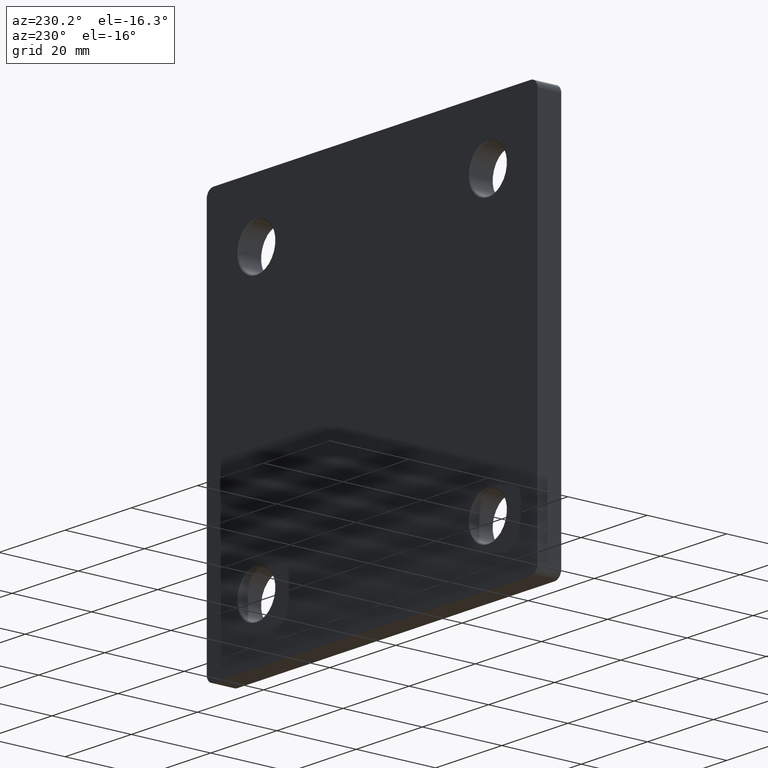
[diagram: clean part render]
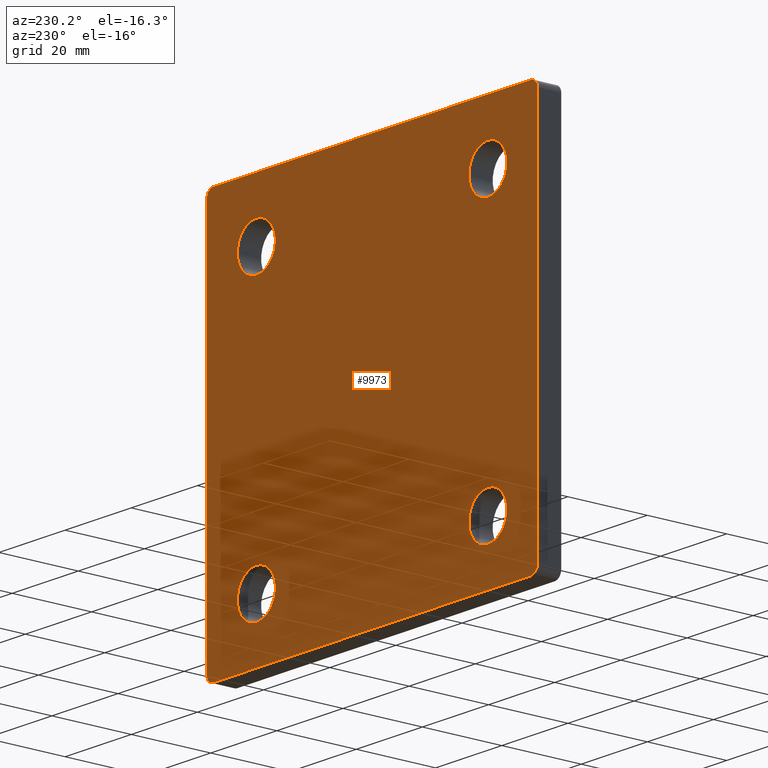
[diagram: same view with one face highlighted and labeled with its STEP entity id]
A machine part, auxiliary view. The second image highlights one B-rep face of the part: STEP entity #9973.
In plain terms, the highlighted planar face has unit normal (0, 1, 0).
Its self-contained STEP definition (entity closure, byte-faithful):
#49 = CARTESIAN_POINT ( 'NONE',  ( -35.00000000000000000, 6.000000000000000000, -40.74999999999999289 ) ) ;
#66 = DIRECTION ( 'NONE',  ( 0.000000000000000000, 0.000000000000000000, 1.000000000000000000 ) ) ;
#80 = EDGE_CURVE ( 'NONE', #7110, #6244, #876, .T. ) ;
#161 = VERTEX_POINT ( 'NONE', #1107 ) ;
#231 = ORIENTED_EDGE ( 'NONE', *, *, #5548, .T. ) ;
#233 = CARTESIAN_POINT ( 'NONE',  ( 47.99999999999998579, 6.000000000000000000, -47.99999999999999289 ) ) ;
#246 = VERTEX_POINT ( 'NONE', #2281 ) ;
#321 = DIRECTION ( 'NONE',  ( 0.000000000000000000, 0.000000000000000000, 1.000000000000000000 ) ) ;
#336 = CARTESIAN_POINT ( 'NONE',  ( 35.00000000000000000, 6.000000000000000000, 35.00000000000000000 ) ) ;
#541 = CIRCLE ( 'NONE', #5663, 5.749999999999991118 ) ;
#711 = CARTESIAN_POINT ( 'NONE',  ( -50.00000000000000000, 6.000000000000000000, -47.99999999999998579 ) ) ;
#864 = DIRECTION ( 'NONE',  ( -0.000000000000000000, -1.000000000000000000, -0.000000000000000000 ) ) ;
#876 = CIRCLE ( 'NONE', #9918, 5.749999999999991118 ) ;
#1096 = AXIS2_PLACEMENT_3D ( 'NONE', #6706, #7399, #8295 ) ;
#1107 = CARTESIAN_POINT ( 'NONE',  ( -35.00000000000000000, 6.000000000000000000, -29.25000000000001066 ) ) ;
#1111 = AXIS2_PLACEMENT_3D ( 'NONE', #1390, #6675, #8497 ) ;
#1130 = CARTESIAN_POINT ( 'NONE',  ( -49.99999999999998579, 6.000000000000000000, 48.00000000000001421 ) ) ;
#1224 = ORIENTED_EDGE ( 'NONE', *, *, #8858, .T. ) ;
#1233 = DIRECTION ( 'NONE',  ( -2.775557561562891351E-16, -0.000000000000000000, -1.000000000000000000 ) ) ;
#1329 = DIRECTION ( 'NONE',  ( -0.000000000000000000, -1.000000000000000000, -0.000000000000000000 ) ) ;
#1359 = CARTESIAN_POINT ( 'NONE',  ( -50.00000000000000000, 6.000000000000000000, -49.99999999999998579 ) ) ;
#1370 = VERTEX_POINT ( 'NONE', #5538 ) ;
#1390 = CARTESIAN_POINT ( 'NONE',  ( 35.00000000000000000, 6.000000000000000000, -35.00000000000000000 ) ) ;
#1470 = EDGE_CURVE ( 'NONE', #8316, #9772, #7294, .T. ) ;
#1674 = LINE ( 'NONE', #9294, #2527 ) ;
#1734 = ORIENTED_EDGE ( 'NONE', *, *, #2766, .T. ) ;
#1788 = CARTESIAN_POINT ( 'NONE',  ( 0.000000000000000000, 6.000000000000000000, 0.000000000000000000 ) ) ;
#1802 = DIRECTION ( 'NONE',  ( 0.000000000000000000, 0.000000000000000000, 1.000000000000000000 ) ) ;
#2071 = DIRECTION ( 'NONE',  ( 0.000000000000000000, 1.000000000000000000, 0.000000000000000000 ) ) ;
#2077 = EDGE_CURVE ( 'NONE', #6290, #246, #4035, .T. ) ;
#2281 = CARTESIAN_POINT ( 'NONE',  ( -35.00000000000000000, 6.000000000000000000, 29.25000000000001066 ) ) ;
#2527 = VECTOR ( 'NONE', #9173, 1000.000000000000000 ) ;
#2612 = CARTESIAN_POINT ( 'NONE',  ( -48.00000000000000000, 6.000000000000000000, -49.99999999999998579 ) ) ;
#2631 = VERTEX_POINT ( 'NONE', #6450 ) ;
#2766 = EDGE_CURVE ( 'NONE', #8219, #8316, #6720, .T. ) ;
#3010 = DIRECTION ( 'NONE',  ( 0.000000000000000000, 0.000000000000000000, 1.000000000000000000 ) ) ;
#3028 = CARTESIAN_POINT ( 'NONE',  ( -47.99999999999998579, 6.000000000000000000, 50.00000000000000711 ) ) ;
#3060 = EDGE_CURVE ( 'NONE', #9772, #2631, #1674, .T. ) ;
#3473 = CARTESIAN_POINT ( 'NONE',  ( -35.00000000000000000, 6.000000000000000000, 35.00000000000000000 ) ) ;
#3768 = AXIS2_PLACEMENT_3D ( 'NONE', #6218, #9832, #66 ) ;
#3920 = AXIS2_PLACEMENT_3D ( 'NONE', #233, #2071, #11040 ) ;
#4003 = CARTESIAN_POINT ( 'NONE',  ( -35.00000000000000000, 6.000000000000000000, -35.00000000000000000 ) ) ;
#4014 = ORIENTED_EDGE ( 'NONE', *, *, #2077, .T. ) ;
#4035 = CIRCLE ( 'NONE', #6240, 5.749999999999991118 ) ;
#4055 = CARTESIAN_POINT ( 'NONE',  ( 35.00000000000000000, 6.000000000000000000, -35.00000000000000000 ) ) ;
#4279 = CARTESIAN_POINT ( 'NONE',  ( 35.00000000000000000, 6.000000000000000000, 29.25000000000001066 ) ) ;
#4353 = DIRECTION ( 'NONE',  ( -0.000000000000000000, -1.000000000000000000, -0.000000000000000000 ) ) ;
#4443 = EDGE_CURVE ( 'NONE', #246, #6290, #11563, .T. ) ;
#4446 = VERTEX_POINT ( 'NONE', #11098 ) ;
#4641 = CARTESIAN_POINT ( 'NONE',  ( -50.00000000000000000, 6.000000000000000000, -49.99999999999998579 ) ) ;
#4730 = ORIENTED_EDGE ( 'NONE', *, *, #1470, .T. ) ;
#4754 = VECTOR ( 'NONE', #1233, 1000.000000000000000 ) ;
#4775 = EDGE_CURVE ( 'NONE', #6244, #7110, #11162, .T. ) ;
#4911 = DIRECTION ( 'NONE',  ( 0.000000000000000000, 0.000000000000000000, 1.000000000000000000 ) ) ;
#5179 = CARTESIAN_POINT ( 'NONE',  ( 47.99999999999995737, 6.000000000000000000, -49.99999999999999289 ) ) ;
#5250 = CIRCLE ( 'NONE', #3920, 2.000000000000001776 ) ;
#5272 = EDGE_LOOP ( 'NONE', ( #4014, #9495 ) ) ;
#5345 = LINE ( 'NONE', #1359, #6339 ) ;
#5360 = DIRECTION ( 'NONE',  ( 0.000000000000000000, 1.000000000000000000, 0.000000000000000000 ) ) ;
#5430 = AXIS2_PLACEMENT_3D ( 'NONE', #7161, #864, #1802 ) ;
#5495 = ORIENTED_EDGE ( 'NONE', *, *, #7026, .T. ) ;
#5538 = CARTESIAN_POINT ( 'NONE',  ( 35.00000000000000000, 6.000000000000000000, -40.74999999999999289 ) ) ;
#5548 = EDGE_CURVE ( 'NONE', #1370, #8710, #541, .T. ) ;
#5579 = DIRECTION ( 'NONE',  ( 1.387778780781445676E-16, 0.000000000000000000, 1.000000000000000000 ) ) ;
#5663 = AXIS2_PLACEMENT_3D ( 'NONE', #4055, #11106, #8495 ) ;
#5742 = CARTESIAN_POINT ( 'NONE',  ( -35.00000000000000000, 6.000000000000000000, -35.00000000000000000 ) ) ;
#5947 = CIRCLE ( 'NONE', #1111, 5.749999999999991118 ) ;
#6095 = CIRCLE ( 'NONE', #8746, 2.000000000000001776 ) ;
#6195 = LINE ( 'NONE', #7600, #4754 ) ;
#6218 = CARTESIAN_POINT ( 'NONE',  ( 48.00000000000001421, 6.000000000000000000, 48.00000000000000711 ) ) ;
#6240 = AXIS2_PLACEMENT_3D ( 'NONE', #3473, #4353, #6943 ) ;
#6244 = VERTEX_POINT ( 'NONE', #4279 ) ;
#6270 = EDGE_LOOP ( 'NONE', ( #7407, #9941 ) ) ;
#6290 = VERTEX_POINT ( 'NONE', #6979 ) ;
#6339 = VECTOR ( 'NONE', #7613, 1000.000000000000000 ) ;
#6450 = CARTESIAN_POINT ( 'NONE',  ( 48.00000000000001421, 6.000000000000000000, 50.00000000000000711 ) ) ;
#6675 = DIRECTION ( 'NONE',  ( -0.000000000000000000, -1.000000000000000000, -0.000000000000000000 ) ) ;
#6690 = DIRECTION ( 'NONE',  ( 0.000000000000000000, 1.000000000000000000, 0.000000000000000000 ) ) ;
#6706 = CARTESIAN_POINT ( 'NONE',  ( -35.00000000000000000, 6.000000000000000000, 35.00000000000000000 ) ) ;
#6708 = AXIS2_PLACEMENT_3D ( 'NONE', #4003, #8523, #11172 ) ;
#6720 = LINE ( 'NONE', #4641, #9678 ) ;
#6793 = ORIENTED_EDGE ( 'NONE', *, *, #11474, .T. ) ;
#6850 = EDGE_LOOP ( 'NONE', ( #11152, #7827, #10529, #9200, #1734, #4730, #7282, #5495 ) ) ;
#6943 = DIRECTION ( 'NONE',  ( 0.000000000000000000, 0.000000000000000000, 1.000000000000000000 ) ) ;
#6979 = CARTESIAN_POINT ( 'NONE',  ( -35.00000000000000000, 6.000000000000000000, 40.74999999999999289 ) ) ;
#7026 = EDGE_CURVE ( 'NONE', #2631, #4446, #8492, .T. ) ;
#7038 = CIRCLE ( 'NONE', #6708, 5.749999999999991118 ) ;
#7110 = VERTEX_POINT ( 'NONE', #8323 ) ;
#7153 = EDGE_CURVE ( 'NONE', #7573, #161, #9903, .T. ) ;
#7161 = CARTESIAN_POINT ( 'NONE',  ( 35.00000000000000000, 6.000000000000000000, 35.00000000000000000 ) ) ;
#7282 = ORIENTED_EDGE ( 'NONE', *, *, #3060, .T. ) ;
#7294 = CIRCLE ( 'NONE', #7443, 2.000000000000001776 ) ;
#7399 = DIRECTION ( 'NONE',  ( -0.000000000000000000, -1.000000000000000000, -0.000000000000000000 ) ) ;
#7407 = ORIENTED_EDGE ( 'NONE', *, *, #80, .T. ) ;
#7443 = AXIS2_PLACEMENT_3D ( 'NONE', #8468, #6690, #321 ) ;
#7479 = DIRECTION ( 'NONE',  ( -0.000000000000000000, -1.000000000000000000, -0.000000000000000000 ) ) ;
#7573 = VERTEX_POINT ( 'NONE', #49 ) ;
#7594 = EDGE_CURVE ( 'NONE', #8577, #10343, #5250, .T. ) ;
#7600 = CARTESIAN_POINT ( 'NONE',  ( 49.99999999999998579, 6.000000000000000000, -49.99999999999999289 ) ) ;
#7613 = DIRECTION ( 'NONE',  ( -1.000000000000000000, -0.000000000000000000, 6.938893903907229610E-17 ) ) ;
#7617 = FACE_OUTER_BOUND ( 'NONE', #6850, .T. ) ;
#7827 = ORIENTED_EDGE ( 'NONE', *, *, #7594, .T. ) ;
#8069 = CARTESIAN_POINT ( 'NONE',  ( 35.00000000000000000, 6.000000000000000000, -29.25000000000001066 ) ) ;
#8156 = EDGE_CURVE ( 'NONE', #8196, #8219, #6095, .T. ) ;
#8196 = VERTEX_POINT ( 'NONE', #2612 ) ;
#8219 = VERTEX_POINT ( 'NONE', #711 ) ;
#8295 = DIRECTION ( 'NONE',  ( 0.000000000000000000, 0.000000000000000000, 1.000000000000000000 ) ) ;
#8316 = VERTEX_POINT ( 'NONE', #1130 ) ;
#8323 = CARTESIAN_POINT ( 'NONE',  ( 35.00000000000000000, 6.000000000000000000, 40.74999999999999289 ) ) ;
#8435 = DIRECTION ( 'NONE',  ( 0.000000000000000000, 0.000000000000000000, 1.000000000000000000 ) ) ;
#8468 = CARTESIAN_POINT ( 'NONE',  ( -47.99999999999998579, 6.000000000000000000, 48.00000000000000711 ) ) ;
#8491 = CARTESIAN_POINT ( 'NONE',  ( -48.00000000000000000, 6.000000000000000000, -47.99999999999998579 ) ) ;
#8492 = CIRCLE ( 'NONE', #3768, 2.000000000000001776 ) ;
#8495 = DIRECTION ( 'NONE',  ( 0.000000000000000000, 0.000000000000000000, 1.000000000000000000 ) ) ;
#8497 = DIRECTION ( 'NONE',  ( 0.000000000000000000, 0.000000000000000000, 1.000000000000000000 ) ) ;
#8523 = DIRECTION ( 'NONE',  ( -0.000000000000000000, -1.000000000000000000, -0.000000000000000000 ) ) ;
#8577 = VERTEX_POINT ( 'NONE', #9774 ) ;
#8710 = VERTEX_POINT ( 'NONE', #8069 ) ;
#8746 = AXIS2_PLACEMENT_3D ( 'NONE', #8491, #9407, #4911 ) ;
#8858 = EDGE_CURVE ( 'NONE', #8710, #1370, #5947, .T. ) ;
#9056 = DIRECTION ( 'NONE',  ( 0.000000000000000000, -0.000000000000000000, 1.000000000000000000 ) ) ;
#9153 = FACE_BOUND ( 'NONE', #5272, .T. ) ;
#9173 = DIRECTION ( 'NONE',  ( 1.000000000000000000, 0.000000000000000000, 0.000000000000000000 ) ) ;
#9200 = ORIENTED_EDGE ( 'NONE', *, *, #8156, .T. ) ;
#9229 = EDGE_LOOP ( 'NONE', ( #6793, #9370 ) ) ;
#9294 = CARTESIAN_POINT ( 'NONE',  ( -49.99999999999998579, 6.000000000000000000, 50.00000000000000711 ) ) ;
#9370 = ORIENTED_EDGE ( 'NONE', *, *, #7153, .T. ) ;
#9407 = DIRECTION ( 'NONE',  ( 0.000000000000000000, 1.000000000000000000, 0.000000000000000000 ) ) ;
#9495 = ORIENTED_EDGE ( 'NONE', *, *, #4443, .T. ) ;
#9678 = VECTOR ( 'NONE', #5579, 1000.000000000000000 ) ;
#9772 = VERTEX_POINT ( 'NONE', #3028 ) ;
#9774 = CARTESIAN_POINT ( 'NONE',  ( 49.99999999999998579, 6.000000000000000000, -47.99999999999999289 ) ) ;
#9832 = DIRECTION ( 'NONE',  ( 0.000000000000000000, 1.000000000000000000, 0.000000000000000000 ) ) ;
#9903 = CIRCLE ( 'NONE', #10243, 5.749999999999991118 ) ;
#9918 = AXIS2_PLACEMENT_3D ( 'NONE', #336, #7479, #3010 ) ;
#9923 = PLANE ( 'NONE',  #10837 ) ;
#9941 = ORIENTED_EDGE ( 'NONE', *, *, #4775, .T. ) ;
#9973 = ADVANCED_FACE ( 'NONE', ( #10819, #11237, #9998, #9153, #7617 ), #9923, .T. ) ;
#9998 = FACE_BOUND ( 'NONE', #9229, .T. ) ;
#10165 = EDGE_LOOP ( 'NONE', ( #1224, #231 ) ) ;
#10243 = AXIS2_PLACEMENT_3D ( 'NONE', #5742, #1329, #8435 ) ;
#10343 = VERTEX_POINT ( 'NONE', #5179 ) ;
#10529 = ORIENTED_EDGE ( 'NONE', *, *, #10836, .T. ) ;
#10819 = FACE_BOUND ( 'NONE', #6270, .T. ) ;
#10836 = EDGE_CURVE ( 'NONE', #10343, #8196, #5345, .T. ) ;
#10837 = AXIS2_PLACEMENT_3D ( 'NONE', #1788, #5360, #9056 ) ;
#11040 = DIRECTION ( 'NONE',  ( 0.000000000000000000, 0.000000000000000000, 1.000000000000000000 ) ) ;
#11089 = EDGE_CURVE ( 'NONE', #4446, #8577, #6195, .T. ) ;
#11098 = CARTESIAN_POINT ( 'NONE',  ( 50.00000000000001421, 6.000000000000000000, 48.00000000000000711 ) ) ;
#11106 = DIRECTION ( 'NONE',  ( -0.000000000000000000, -1.000000000000000000, -0.000000000000000000 ) ) ;
#11152 = ORIENTED_EDGE ( 'NONE', *, *, #11089, .T. ) ;
#11162 = CIRCLE ( 'NONE', #5430, 5.749999999999991118 ) ;
#11172 = DIRECTION ( 'NONE',  ( 0.000000000000000000, 0.000000000000000000, 1.000000000000000000 ) ) ;
#11237 = FACE_BOUND ( 'NONE', #10165, .T. ) ;
#11474 = EDGE_CURVE ( 'NONE', #161, #7573, #7038, .T. ) ;
#11563 = CIRCLE ( 'NONE', #1096, 5.749999999999991118 ) ;